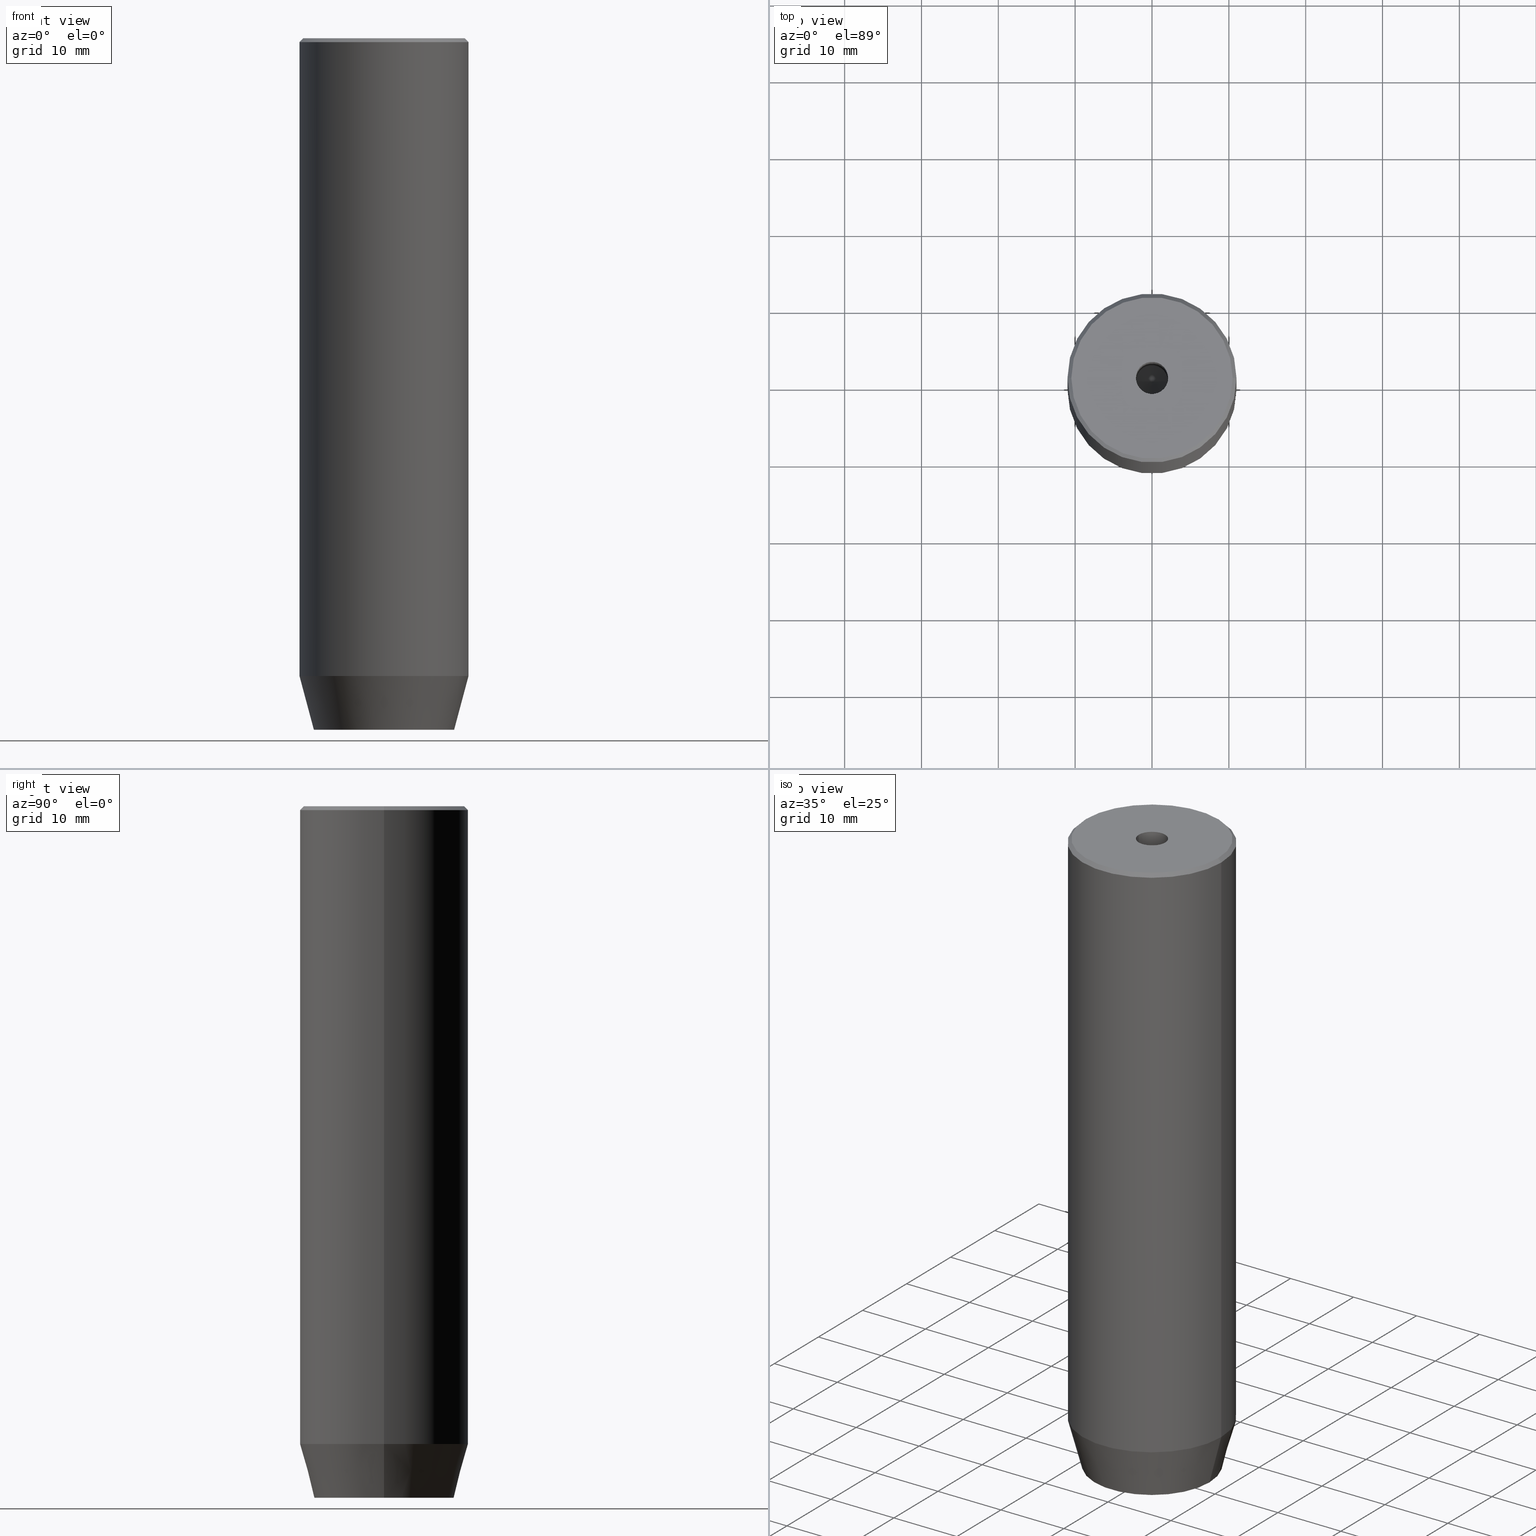
[diagram: canonical four-view strip — front | top / right | iso, engineering-drawing reading convention]
A machine part, canonical four-view strip (front | top / right | iso — engineering-drawing reading convention). The complete STEP part file that produces these views, byte-faithful:
ISO-10303-21;
HEADER;
FILE_DESCRIPTION (( 'STEP AP203' ),
    '1' );
FILE_NAME ('916c.STEP',
    '2024-01-02T19:02:00',
    ( '' ),
    ( '' ),
    'SwSTEP 2.0',
    'SolidWorks 2019',
    '' );
FILE_SCHEMA (( 'CONFIG_CONTROL_DESIGN' ));
ENDSEC;

DATA;
#1 = ADVANCED_FACE ( 'NONE', ( #243 ), #334, .F. ) ;
#2 = DIRECTION ( 'NONE',  ( -0.000000000000000000, -0.000000000000000000, 1.000000000000000000 ) ) ;
#3 = PERSON_AND_ORGANIZATION ( #75, #422 ) ;
#4 = EDGE_LOOP ( 'NONE', ( #456, #184, #555, #200 ) ) ;
#5 = DIRECTION ( 'NONE',  ( 1.000000000000000000, 0.000000000000000000, 0.000000000000000000 ) ) ;
#6 = EDGE_CURVE ( 'NONE', #329, #25, #424, .T. ) ;
#7 = ORIENTED_EDGE ( 'NONE', *, *, #59, .T. ) ;
#8 = DIRECTION ( 'NONE',  ( 0.8660254037844385966, -0.5000000000000001110, 0.000000000000000000 ) ) ;
#9 = AXIS2_PLACEMENT_3D ( 'NONE', #579, #410, #219 ) ;
#10 = CARTESIAN_POINT ( 'NONE',  ( -4.000000000000000000, 2.309401076758503368, -87.20000000000000284 ) ) ;
#11 = ORIENTED_EDGE ( 'NONE', *, *, #171, .T. ) ;
#12 = EDGE_CURVE ( 'NONE', #586, #420, #474, .T. ) ;
#13 = ORIENTED_EDGE ( 'NONE', *, *, #33, .T. ) ;
#14 = PLANE ( 'NONE',  #254 ) ;
#15 = APPROVAL_STATUS ( 'not_yet_approved' ) ;
#16 = ORIENTED_EDGE ( 'NONE', *, *, #214, .F. ) ;
#17 = ORIENTED_EDGE ( 'NONE', *, *, #116, .T. ) ;
#18 = EDGE_CURVE ( 'NONE', #408, #190, #22, .T. ) ;
#19 = PLANE ( 'NONE',  #336 ) ;
#20 = ORIENTED_EDGE ( 'NONE', *, *, #425, .T. ) ;
#21 = DIRECTION ( 'NONE',  ( -0.000000000000000000, -0.000000000000000000, -1.000000000000000000 ) ) ;
#22 = LINE ( 'NONE', #377, #546 ) ;
#23 = CARTESIAN_POINT ( 'NONE',  ( 4.000000000000000000, -2.309401076758502480, -90.00000000000000000 ) ) ;
#24 = CIRCLE ( 'NONE', #475, 10.49999999999999467 ) ;
#25 = VERTEX_POINT ( 'NONE', #568 ) ;
#26 = COORDINATED_UNIVERSAL_TIME_OFFSET ( 1, 0, .AHEAD. ) ;
#27 = CARTESIAN_POINT ( 'NONE',  ( 0.000000000000000000, 0.000000000000000000, -25.00000000000000000 ) ) ;
#28 = EDGE_CURVE ( 'NONE', #134, #420, #561, .T. ) ;
#29 = EDGE_LOOP ( 'NONE', ( #557, #499, #341, #269 ) ) ;
#30 = CARTESIAN_POINT ( 'NONE',  ( 2.000000000000000888, -3.464101615137754386, -87.20000000000000284 ) ) ;
#31 = CONICAL_SURFACE ( 'NONE', #513, 2.099999999999995648, 1.029744258676651647 ) ;
#32 = DIRECTION ( 'NONE',  ( 0.000000000000000000, 0.000000000000000000, -1.000000000000000000 ) ) ;
#33 = EDGE_CURVE ( 'NONE', #244, #201, #260, .T. ) ;
#34 = CARTESIAN_POINT ( 'NONE',  ( 2.099999999999995648, 0.000000000000000000, -25.00000000000000000 ) ) ;
#35 = DIRECTION ( 'NONE',  ( 1.000000000000000000, 0.000000000000000000, 0.000000000000000000 ) ) ;
#36 = VECTOR ( 'NONE', #339, 1000.000000000000114 ) ;
#37 = CIRCLE ( 'NONE', #368, 10.49999999999999467 ) ;
#38 = CARTESIAN_POINT ( 'NONE',  ( 4.000000000000000000, -2.309401076758502480, -87.20000000000000284 ) ) ;
#39 = ADVANCED_FACE ( 'NONE', ( #48 ), #235, .T. ) ;
#40 = CARTESIAN_POINT ( 'NONE',  ( -11.00000000000000000, 1.347111479062088405E-15, 0.000000000000000000 ) ) ;
#41 = PERSON_AND_ORGANIZATION ( #75, #422 ) ;
#42 = LINE ( 'NONE', #314, #524 ) ;
#43 = ORIENTED_EDGE ( 'NONE', *, *, #571, .T. ) ;
#44 = DIRECTION ( 'NONE',  ( 1.000000000000000000, 0.000000000000000000, 0.000000000000000000 ) ) ;
#45 = CONICAL_SURFACE ( 'NONE', #453, 2.099999999999995648, 1.029744258676651647 ) ;
#46 = APPROVAL_PERSON_ORGANIZATION ( #570, #578, #62 ) ;
#47 = DIRECTION ( 'NONE',  ( -0.000000000000000000, -0.000000000000000000, -1.000000000000000000 ) ) ;
#48 = FACE_OUTER_BOUND ( 'NONE', #29, .T. ) ;
#49 = ORIENTED_EDGE ( 'NONE', *, *, #409, .F. ) ;
#50 = CARTESIAN_POINT ( 'NONE',  ( 0.000000000000000000, 4.618802153517006737, -87.20000000000000284 ) ) ;
#51 = CARTESIAN_POINT ( 'NONE',  ( -2.000000000000000000, 3.464101615137754830, -87.20000000000000284 ) ) ;
#52 = ORIENTED_EDGE ( 'NONE', *, *, #506, .F. ) ;
#53 = CARTESIAN_POINT ( 'NONE',  ( 0.000000000000000000, 0.000000000000000000, -25.00000000000000000 ) ) ;
#54 = EDGE_LOOP ( 'NONE', ( #340, #49, #527, #515 ) ) ;
#55 = VECTOR ( 'NONE', #438, 1000.000000000000000 ) ;
#56 = CC_DESIGN_APPROVAL ( #485, ( #584 ) ) ;
#57 = DATE_AND_TIME ( #232, #106 ) ;
#58 = ORIENTED_EDGE ( 'NONE', *, *, #346, .T. ) ;
#59 = EDGE_CURVE ( 'NONE', #286, #344, #460, .T. ) ;
#60 = VERTEX_POINT ( 'NONE', #174 ) ;
#61 = DIRECTION ( 'NONE',  ( 1.000000000000000000, 0.000000000000000000, 0.000000000000000000 ) ) ;
#62 = APPROVAL_ROLE ( '' ) ;
#63 = VERTEX_POINT ( 'NONE', #10 ) ;
#64 = CARTESIAN_POINT ( 'NONE',  ( 9.124355652982133691, 0.000000000000000000, -90.00000000000000000 ) ) ;
#65 = EDGE_CURVE ( 'NONE', #277, #97, #42, .T. ) ;
#66 = ORIENTED_EDGE ( 'NONE', *, *, #233, .T. ) ;
#67 = VECTOR ( 'NONE', #442, 1000.000000000000000 ) ;
#68 =( GEOMETRIC_REPRESENTATION_CONTEXT ( 3 ) GLOBAL_UNCERTAINTY_ASSIGNED_CONTEXT ( ( #204 ) ) GLOBAL_UNIT_ASSIGNED_CONTEXT ( ( #262, #168, #216 ) ) REPRESENTATION_CONTEXT ( 'NONE', 'WORKASPACE' ) );
#69 = DIRECTION ( 'NONE',  ( -0.8660254037844384856, 0.5000000000000002220, 0.000000000000000000 ) ) ;
#70 = EDGE_CURVE ( 'NONE', #278, #564, #347, .T. ) ;
#71 = FACE_OUTER_BOUND ( 'NONE', #109, .T. ) ;
#72 = EDGE_LOOP ( 'NONE', ( #433, #359 ) ) ;
#73 = ORIENTED_EDGE ( 'NONE', *, *, #434, .T. ) ;
#74 = DIRECTION ( 'NONE',  ( 0.5000000000000001110, 0.8660254037844385966, -0.000000000000000000 ) ) ;
#75 = PERSON ( 'NEUR�EN�', 'NEUR�EN�', 'NEUR�EN�', ('NEUR�EN�'), ('NEUR�EN�'), ('NEUR�EN�') ) ;
#76 = LINE ( 'NONE', #122, #167 ) ;
#77 = AXIS2_PLACEMENT_3D ( 'NONE', #457, #363, #146 ) ;
#78 = VECTOR ( 'NONE', #295, 1000.000000000000114 ) ;
#79 = ADVANCED_FACE ( 'NONE', ( #497 ), #507, .F. ) ;
#80 = CARTESIAN_POINT ( 'NONE',  ( -11.00000000000000000, 1.347111479062088405E-15, -0.5000000000000004441 ) ) ;
#81 = FACE_OUTER_BOUND ( 'NONE', #299, .T. ) ;
#82 = DIRECTION ( 'NONE',  ( -1.000000000000000000, 0.000000000000000000, -0.000000000000000000 ) ) ;
#83 = VECTOR ( 'NONE', #401, 1000.000000000000000 ) ;
#84 = CC_DESIGN_SECURITY_CLASSIFICATION ( #236, ( #406 ) ) ;
#85 = CARTESIAN_POINT ( 'NONE',  ( -11.00000000000000000, 1.347111479062088405E-15, -82.99999999999998579 ) ) ;
#86 = ADVANCED_FACE ( 'NONE', ( #187 ), #31, .F. ) ;
#87 = CARTESIAN_POINT ( 'NONE',  ( -10.49999999999999467, 0.000000000000000000, 0.000000000000000000 ) ) ;
#88 = PRODUCT_DEFINITION_SHAPE ( 'NONE', 'NONE',  #584 ) ;
#89 = CARTESIAN_POINT ( 'NONE',  ( 0.000000000000000000, 0.000000000000000000, 0.000000000000000000 ) ) ;
#90 = ORIENTED_EDGE ( 'NONE', *, *, #163, .T. ) ;
#91 = CARTESIAN_POINT ( 'NONE',  ( 4.000000000000000000, 2.309401076758503368, -87.20000000000000284 ) ) ;
#92 = DIRECTION ( 'NONE',  ( 1.000000000000000000, 0.000000000000000000, 0.000000000000000000 ) ) ;
#93 = CALENDAR_DATE ( 2024, 2, 1 ) ;
#94 = AXIS2_PLACEMENT_3D ( 'NONE', #418, #270, #537 ) ;
#95 = LINE ( 'NONE', #85, #208 ) ;
#96 = CARTESIAN_POINT ( 'NONE',  ( 0.000000000000000000, 0.000000000000000000, -90.00000000000000000 ) ) ;
#97 = VERTEX_POINT ( 'NONE', #144 ) ;
#98 = CARTESIAN_POINT ( 'NONE',  ( -6.432287649943602629E-15, 0.000000000000000000, -26.26180729995787999 ) ) ;
#99 = CARTESIAN_POINT ( 'NONE',  ( 0.000000000000000000, 0.000000000000000000, -82.99999999999998579 ) ) ;
#100 = EDGE_CURVE ( 'NONE', #382, #329, #226, .T. ) ;
#101 = LINE ( 'NONE', #423, #177 ) ;
#102 = COORDINATED_UNIVERSAL_TIME_OFFSET ( 1, 0, .AHEAD. ) ;
#103 = ORIENTED_EDGE ( 'NONE', *, *, #100, .F. ) ;
#104 = ORIENTED_EDGE ( 'NONE', *, *, #59, .F. ) ;
#105 = DIRECTION ( 'NONE',  ( -1.000000000000000000, 0.000000000000000000, 0.000000000000000000 ) ) ;
#106 = LOCAL_TIME ( 20, 2, 0.000000000000000000, #133 ) ;
#107 = DIRECTION ( 'NONE',  ( 0.000000000000000000, 0.000000000000000000, -1.000000000000000000 ) ) ;
#108 = ORIENTED_EDGE ( 'NONE', *, *, #233, .F. ) ;
#109 = EDGE_LOOP ( 'NONE', ( #429, #322, #385 ) ) ;
#110 = CARTESIAN_POINT ( 'NONE',  ( 0.000000000000000000, 0.000000000000000000, -82.99999999999998579 ) ) ;
#111 = APPROVAL ( #419, 'NEUR�EN�' ) ;
#112 = ORIENTED_EDGE ( 'NONE', *, *, #18, .F. ) ;
#113 = FACE_OUTER_BOUND ( 'NONE', #374, .T. ) ;
#114 = CARTESIAN_POINT ( 'NONE',  ( -11.00000000000000000, 1.347111479062088405E-15, -82.99999999999998579 ) ) ;
#115 = DIRECTION ( 'NONE',  ( 1.000000000000000000, 0.000000000000000000, -0.000000000000000000 ) ) ;
#116 = EDGE_CURVE ( 'NONE', #25, #408, #231, .T. ) ;
#117 = DIRECTION ( 'NONE',  ( 0.000000000000000000, -0.000000000000000000, 1.000000000000000000 ) ) ;
#118 = VERTEX_POINT ( 'NONE', #179 ) ;
#119 = AXIS2_PLACEMENT_3D ( 'NONE', #481, #309, #444 ) ;
#120 = EDGE_LOOP ( 'NONE', ( #416, #381, #543, #452 ) ) ;
#121 = LINE ( 'NONE', #38, #55 ) ;
#122 = CARTESIAN_POINT ( 'NONE',  ( 4.000000000000000000, 0.000000000000000000, -87.20000000000000284 ) ) ;
#123 = DIRECTION ( 'NONE',  ( -0.000000000000000000, -0.000000000000000000, 1.000000000000000000 ) ) ;
#124 = EDGE_CURVE ( 'NONE', #190, #277, #220, .T. ) ;
#125 = FACE_OUTER_BOUND ( 'NONE', #509, .T. ) ;
#126 = DIRECTION ( 'NONE',  ( 0.000000000000000000, 0.000000000000000000, -1.000000000000000000 ) ) ;
#127 = APPLICATION_PROTOCOL_DEFINITION ( 'international standard', 'config_control_design', 1994, #392 ) ;
#128 = CLOSED_SHELL ( 'NONE', ( #79, #222, #470, #39, #390, #137, #514, #132, #574, #510, #242, #439, #198, #365, #1, #395, #324, #86, #291 ) ) ;
#129 = AXIS2_PLACEMENT_3D ( 'NONE', #96, #566, #61 ) ;
#130 = LOCAL_TIME ( 20, 2, 0.000000000000000000, #451 ) ;
#131 = DIRECTION ( 'NONE',  ( -0.2588190451025213501, 3.169619151431772337E-17, 0.9659258262890680902 ) ) ;
#132 = ADVANCED_FACE ( 'NONE', ( #325 ), #358, .T. ) ;
#133 = COORDINATED_UNIVERSAL_TIME_OFFSET ( 1, 0, .AHEAD. ) ;
#134 = VERTEX_POINT ( 'NONE', #98 ) ;
#135 = CC_DESIGN_PERSON_AND_ORGANIZATION_ASSIGNMENT ( #320, #147, ( #236 ) ) ;
#136 = FACE_BOUND ( 'NONE', #273, .T. ) ;
#137 = ADVANCED_FACE ( 'NONE', ( #136, #223 ), #276, .T. ) ;
#138 = DIRECTION ( 'NONE',  ( 0.7071067811865500152, 8.659560562354962440E-17, -0.7071067811865451302 ) ) ;
#139 = DATE_AND_TIME ( #93, #130 ) ;
#140 = ORIENTED_EDGE ( 'NONE', *, *, #171, .F. ) ;
#141 = VECTOR ( 'NONE', #69, 1000.000000000000114 ) ;
#142 = AXIS2_PLACEMENT_3D ( 'NONE', #164, #32, #82 ) ;
#143 = DIRECTION ( 'NONE',  ( -1.000000000000000000, 0.000000000000000000, 0.000000000000000000 ) ) ;
#144 = CARTESIAN_POINT ( 'NONE',  ( 4.000000000000000000, 2.309401076758503368, -90.00000000000000000 ) ) ;
#145 = ORIENTED_EDGE ( 'NONE', *, *, #346, .F. ) ;
#146 = DIRECTION ( 'NONE',  ( 1.000000000000000000, 0.000000000000000000, 0.000000000000000000 ) ) ;
#147 = PERSON_AND_ORGANIZATION_ROLE ( 'classification_officer' ) ;
#148 = VERTEX_POINT ( 'NONE', #327 ) ;
#149 = ORIENTED_EDGE ( 'NONE', *, *, #6, .F. ) ;
#150 = DIRECTION ( 'NONE',  ( -0.000000000000000000, -0.000000000000000000, 1.000000000000000000 ) ) ;
#151 = ORIENTED_EDGE ( 'NONE', *, *, #266, .T. ) ;
#152 = LINE ( 'NONE', #471, #209 ) ;
#153 = ORIENTED_EDGE ( 'NONE', *, *, #100, .T. ) ;
#154 = APPROVAL_PERSON_ORGANIZATION ( #538, #111, #227 ) ;
#155 = DIRECTION ( 'NONE',  ( -0.5000000000000000000, 0.8660254037844387076, 0.000000000000000000 ) ) ;
#156 = CARTESIAN_POINT ( 'NONE',  ( 2.099999999999995648, 0.000000000000000000, -25.00000000000000000 ) ) ;
#157 = EDGE_LOOP ( 'NONE', ( #145, #545, #337, #553 ) ) ;
#158 = DIRECTION ( 'NONE',  ( 0.000000000000000000, 1.000000000000000000, 0.000000000000000000 ) ) ;
#159 = EDGE_CURVE ( 'NONE', #60, #318, #196, .T. ) ;
#160 = DIRECTION ( 'NONE',  ( -0.8660254037844385966, -0.4999999999999999445, 0.000000000000000000 ) ) ;
#161 = CONICAL_SURFACE ( 'NONE', #224, 10.49999999999999467, 0.7853981633974517207 ) ;
#162 = SHAPE_DEFINITION_REPRESENTATION ( #88, #289 ) ;
#163 = EDGE_CURVE ( 'NONE', #244, #344, #449, .T. ) ;
#164 = CARTESIAN_POINT ( 'NONE',  ( 0.000000000000000000, 0.000000000000000000, -87.20000000000000284 ) ) ;
#165 = DIRECTION ( 'NONE',  ( -0.000000000000000000, -0.000000000000000000, 1.000000000000000000 ) ) ;
#166 = DIRECTION ( 'NONE',  ( 1.000000000000000000, 0.000000000000000000, 0.000000000000000000 ) ) ;
#167 = VECTOR ( 'NONE', #529, 1000.000000000000000 ) ;
#168 =( NAMED_UNIT ( * ) PLANE_ANGLE_UNIT ( ) SI_UNIT ( $, .RADIAN. ) );
#169 = AXIS2_PLACEMENT_3D ( 'NONE', #110, #292, #520 ) ;
#170 = DIRECTION ( 'NONE',  ( 0.8660254037844384856, 0.5000000000000002220, 0.000000000000000000 ) ) ;
#171 = EDGE_CURVE ( 'NONE', #148, #118, #455, .T. ) ;
#172 = CARTESIAN_POINT ( 'NONE',  ( 0.000000000000000000, 0.000000000000000000, 0.000000000000000000 ) ) ;
#173 = FACE_OUTER_BOUND ( 'NONE', #413, .T. ) ;
#174 = CARTESIAN_POINT ( 'NONE',  ( -2.099999999999998757, 2.571758278209440478E-16, -1.990051048614449116E-16 ) ) ;
#175 = CIRCLE ( 'NONE', #335, 11.00000000000000000 ) ;
#176 = EDGE_LOOP ( 'NONE', ( #195, #361, #149, #73 ) ) ;
#177 = VECTOR ( 'NONE', #338, 1000.000000000000114 ) ;
#178 = EDGE_CURVE ( 'NONE', #63, #466, #319, .T. ) ;
#179 = CARTESIAN_POINT ( 'NONE',  ( 11.00000000000000000, 0.000000000000000000, -0.5000000000000004441 ) ) ;
#180 = ORIENTED_EDGE ( 'NONE', *, *, #498, .T. ) ;
#181 = LINE ( 'NONE', #535, #83 ) ;
#182 = CARTESIAN_POINT ( 'NONE',  ( -4.000000000000000000, -2.309401076758503368, -87.20000000000000284 ) ) ;
#183 = CC_DESIGN_PERSON_AND_ORGANIZATION_ASSIGNMENT ( #412, #271, ( #406 ) ) ;
#184 = ORIENTED_EDGE ( 'NONE', *, *, #70, .T. ) ;
#185 = AXIS2_PLACEMENT_3D ( 'NONE', #308, #491, #35 ) ;
#186 = FACE_OUTER_BOUND ( 'NONE', #4, .T. ) ;
#187 = FACE_OUTER_BOUND ( 'NONE', #468, .T. ) ;
#188 = ORIENTED_EDGE ( 'NONE', *, *, #414, .F. ) ;
#189 = EDGE_CURVE ( 'NONE', #564, #278, #531, .T. ) ;
#190 = VERTEX_POINT ( 'NONE', #342 ) ;
#191 = FACE_OUTER_BOUND ( 'NONE', #176, .T. ) ;
#192 = DIRECTION ( 'NONE',  ( -0.000000000000000000, -0.000000000000000000, 1.000000000000000000 ) ) ;
#193 = ORIENTED_EDGE ( 'NONE', *, *, #528, .T. ) ;
#194 = CARTESIAN_POINT ( 'NONE',  ( 0.000000000000000000, 0.000000000000000000, 0.000000000000000000 ) ) ;
#195 = ORIENTED_EDGE ( 'NONE', *, *, #214, .T. ) ;
#196 = CIRCLE ( 'NONE', #559, 2.099999999999998757 ) ;
#197 = DIRECTION ( 'NONE',  ( 0.2588190451025213501, 0.000000000000000000, 0.9659258262890680902 ) ) ;
#198 = ADVANCED_FACE ( 'NONE', ( #191 ), #14, .F. ) ;
#199 = DESIGN_CONTEXT ( 'detailed design', #225, 'design' ) ;
#200 = ORIENTED_EDGE ( 'NONE', *, *, #33, .F. ) ;
#201 = VERTEX_POINT ( 'NONE', #376 ) ;
#202 = CARTESIAN_POINT ( 'NONE',  ( 2.168404344971008868E-16, 4.618802153517006737, -90.00000000000000000 ) ) ;
#203 = EDGE_LOOP ( 'NONE', ( #326, #13, #518, #247 ) ) ;
#204 = UNCERTAINTY_MEASURE_WITH_UNIT (LENGTH_MEASURE( 1.000000000000000082E-05 ), #262, 'distance_accuracy_value', 'NONE');
#205 = EDGE_CURVE ( 'NONE', #63, #190, #430, .T. ) ;
#206 = ORIENTED_EDGE ( 'NONE', *, *, #498, .F. ) ;
#207 = CARTESIAN_POINT ( 'NONE',  ( -4.000000000000000000, -2.309401076758503368, -90.00000000000000000 ) ) ;
#208 = VECTOR ( 'NONE', #131, 1000.000000000000000 ) ;
#209 = VECTOR ( 'NONE', #197, 1000.000000000000000 ) ;
#210 = PLANE ( 'NONE',  #321 ) ;
#211 = CARTESIAN_POINT ( 'NONE',  ( 0.000000000000000000, 0.000000000000000000, -1.990051048614449116E-16 ) ) ;
#212 = CARTESIAN_POINT ( 'NONE',  ( 4.336808689942017736E-16, -4.618802153517006737, -87.20000000000000284 ) ) ;
#213 = AXIS2_PLACEMENT_3D ( 'NONE', #27, #192, #389 ) ;
#214 = EDGE_CURVE ( 'NONE', #330, #408, #101, .T. ) ;
#215 = VECTOR ( 'NONE', #367, 1000.000000000000000 ) ;
#216 =( NAMED_UNIT ( * ) SI_UNIT ( $, .STERADIAN. ) SOLID_ANGLE_UNIT ( ) );
#217 = CC_DESIGN_APPROVAL ( #578, ( #236 ) ) ;
#218 = LINE ( 'NONE', #489, #583 ) ;
#219 = DIRECTION ( 'NONE',  ( 0.000000000000000000, 0.000000000000000000, 1.000000000000000000 ) ) ;
#220 = LINE ( 'NONE', #550, #487 ) ;
#221 = PERSON_AND_ORGANIZATION_ROLE ( 'design_owner' ) ;
#222 = ADVANCED_FACE ( 'NONE', ( #71 ), #45, .F. ) ;
#223 = FACE_OUTER_BOUND ( 'NONE', #458, .T. ) ;
#224 = AXIS2_PLACEMENT_3D ( 'NONE', #540, #126, #143 ) ;
#225 = APPLICATION_CONTEXT ( 'configuration controlled 3d designs of mechanical parts and assemblies' ) ;
#226 = LINE ( 'NONE', #267, #351 ) ;
#227 = APPROVAL_ROLE ( '' ) ;
#228 = EDGE_LOOP ( 'NONE', ( #387, #294 ) ) ;
#229 = DIRECTION ( 'NONE',  ( -0.8660254037844384856, -0.5000000000000002220, 0.000000000000000000 ) ) ;
#230 = ORIENTED_EDGE ( 'NONE', *, *, #375, .F. ) ;
#231 = LINE ( 'NONE', #182, #215 ) ;
#232 = CALENDAR_DATE ( 2024, 2, 1 ) ;
#233 = EDGE_CURVE ( 'NONE', #344, #118, #272, .T. ) ;
#234 = EDGE_LOOP ( 'NONE', ( #193, #90, #66, #239 ) ) ;
#235 = CONICAL_SURFACE ( 'NONE', #462, 11.00000000000000000, 0.2617993877991500740 ) ;
#236 = SECURITY_CLASSIFICATION ( '', '', #511 ) ;
#237 = APPROVAL_DATE_TIME ( #364, #485 ) ;
#238 = ORIENTED_EDGE ( 'NONE', *, *, #65, .F. ) ;
#239 = ORIENTED_EDGE ( 'NONE', *, *, #447, .F. ) ;
#240 = CARTESIAN_POINT ( 'NONE',  ( -2.000000000000000888, -3.464101615137754386, -87.20000000000000284 ) ) ;
#241 = ORIENTED_EDGE ( 'NONE', *, *, #178, .T. ) ;
#242 = ADVANCED_FACE ( 'NONE', ( #436 ), #516, .F. ) ;
#243 = FACE_OUTER_BOUND ( 'NONE', #521, .T. ) ;
#244 = VERTEX_POINT ( 'NONE', #114 ) ;
#245 = AXIS2_PLACEMENT_3D ( 'NONE', #30, #399, #170 ) ;
#246 = LINE ( 'NONE', #563, #323 ) ;
#247 = ORIENTED_EDGE ( 'NONE', *, *, #506, .T. ) ;
#248 = CARTESIAN_POINT ( 'NONE',  ( -4.000000000000000000, 0.000000000000000000, -87.20000000000000284 ) ) ;
#249 = DATE_AND_TIME ( #328, #306 ) ;
#250 = LINE ( 'NONE', #370, #78 ) ;
#251 = DIRECTION ( 'NONE',  ( -0.000000000000000000, 0.000000000000000000, -1.000000000000000000 ) ) ;
#252 = ORIENTED_EDGE ( 'NONE', *, *, #434, .F. ) ;
#253 = PLANE ( 'NONE',  #142 ) ;
#254 = AXIS2_PLACEMENT_3D ( 'NONE', #240, #428, #391 ) ;
#255 = CARTESIAN_POINT ( 'NONE',  ( 2.000000000000000444, 3.464101615137754386, -87.20000000000000284 ) ) ;
#256 = LINE ( 'NONE', #400, #297 ) ;
#257 = CARTESIAN_POINT ( 'NONE',  ( 0.000000000000000000, 0.000000000000000000, 0.000000000000000000 ) ) ;
#258 = MECHANICAL_CONTEXT ( 'NONE', #392, 'mechanical' ) ;
#259 = LINE ( 'NONE', #349, #503 ) ;
#260 = CIRCLE ( 'NONE', #345, 11.00000000000000000 ) ;
#261 = VECTOR ( 'NONE', #47, 1000.000000000000000 ) ;
#262 =( LENGTH_UNIT ( ) NAMED_UNIT ( * ) SI_UNIT ( .MILLI., .METRE. ) );
#263 = CARTESIAN_POINT ( 'NONE',  ( 4.000000000000000000, 0.000000000000000000, -90.00000000000000000 ) ) ;
#264 = PRODUCT_RELATED_PRODUCT_CATEGORY ( 'detail', '', ( #486 ) ) ;
#265 = DIRECTION ( 'NONE',  ( -0.000000000000000000, -0.000000000000000000, 1.000000000000000000 ) ) ;
#266 = EDGE_CURVE ( 'NONE', #25, #63, #473, .T. ) ;
#267 = CARTESIAN_POINT ( 'NONE',  ( 2.000000000000000888, -3.464101615137754386, -87.20000000000000284 ) ) ;
#268 = CC_DESIGN_DATE_AND_TIME_ASSIGNMENT ( #57, #281, ( #584 ) ) ;
#269 = ORIENTED_EDGE ( 'NONE', *, *, #525, .F. ) ;
#270 = DIRECTION ( 'NONE',  ( 0.000000000000000000, 0.000000000000000000, -1.000000000000000000 ) ) ;
#271 = PERSON_AND_ORGANIZATION_ROLE ( 'creator' ) ;
#272 = CIRCLE ( 'NONE', #494, 11.00000000000000000 ) ;
#273 = EDGE_LOOP ( 'NONE', ( #431, #112, #16, #549, #206, #238 ) ) ;
#274 = LOCAL_TIME ( 20, 2, 0.000000000000000000, #461 ) ;
#275 = DIRECTION ( 'NONE',  ( -0.8571673007021108903, 1.049727191138616847E-16, 0.5150380749100565980 ) ) ;
#276 = PLANE ( 'NONE',  #94 ) ;
#277 = VERTEX_POINT ( 'NONE', #202 ) ;
#278 = VERTEX_POINT ( 'NONE', #388 ) ;
#279 = EDGE_CURVE ( 'NONE', #148, #286, #24, .T. ) ;
#280 = DIRECTION ( 'NONE',  ( 1.000000000000000000, 0.000000000000000000, 0.000000000000000000 ) ) ;
#281 = DATE_TIME_ROLE ( 'creation_date' ) ;
#282 = CALENDAR_DATE ( 2024, 2, 1 ) ;
#283 = DIRECTION ( 'NONE',  ( -0.000000000000000000, -0.000000000000000000, 1.000000000000000000 ) ) ;
#284 = MANIFOLD_SOLID_BREP ( 'Vrt�k z�vitn�ku pro M5 z�vit1', #128 ) ;
#285 = AXIS2_PLACEMENT_3D ( 'NONE', #558, #155, #160 ) ;
#286 = VERTEX_POINT ( 'NONE', #526 ) ;
#287 = FACE_BOUND ( 'NONE', #228, .T. ) ;
#288 = DIRECTION ( 'NONE',  ( 1.000000000000000000, 0.000000000000000000, 0.000000000000000000 ) ) ;
#289 = ADVANCED_BREP_SHAPE_REPRESENTATION ( '916c', ( #284, #465 ), #68 ) ;
#290 = DIRECTION ( 'NONE',  ( 0.000000000000000000, 1.000000000000000000, 0.000000000000000000 ) ) ;
#291 = ADVANCED_FACE ( 'NONE', ( #577 ), #576, .F. ) ;
#292 = DIRECTION ( 'NONE',  ( -0.000000000000000000, -0.000000000000000000, 1.000000000000000000 ) ) ;
#293 = CARTESIAN_POINT ( 'NONE',  ( 0.000000000000000000, 0.000000000000000000, -82.99999999999998579 ) ) ;
#294 = ORIENTED_EDGE ( 'NONE', *, *, #159, .F. ) ;
#295 = DIRECTION ( 'NONE',  ( -0.8660254037844384856, -0.5000000000000002220, 0.000000000000000000 ) ) ;
#296 = CARTESIAN_POINT ( 'NONE',  ( -2.000000000000000888, -3.464101615137754386, -87.20000000000000284 ) ) ;
#297 = VECTOR ( 'NONE', #304, 1000.000000000000000 ) ;
#298 = DIRECTION ( 'NONE',  ( -0.000000000000000000, -0.000000000000000000, 1.000000000000000000 ) ) ;
#299 = EDGE_LOOP ( 'NONE', ( #552, #252, #103, #565 ) ) ;
#300 = ORIENTED_EDGE ( 'NONE', *, *, #28, .T. ) ;
#301 = EDGE_CURVE ( 'NONE', #472, #382, #76, .T. ) ;
#302 = CARTESIAN_POINT ( 'NONE',  ( 4.000000000000000000, -2.309401076758502480, -87.20000000000000284 ) ) ;
#303 = ORIENTED_EDGE ( 'NONE', *, *, #18, .T. ) ;
#304 = DIRECTION ( 'NONE',  ( -0.000000000000000000, -0.000000000000000000, -1.000000000000000000 ) ) ;
#305 = CARTESIAN_POINT ( 'NONE',  ( 4.336808689942017736E-16, -4.618802153517006737, -90.00000000000000000 ) ) ;
#306 = LOCAL_TIME ( 20, 2, 0.000000000000000000, #102 ) ;
#307 = EDGE_CURVE ( 'NONE', #382, #562, #121, .T. ) ;
#308 = CARTESIAN_POINT ( 'NONE',  ( 0.000000000000000000, 0.000000000000000000, -25.00000000000000000 ) ) ;
#309 = DIRECTION ( 'NONE',  ( -0.000000000000000000, -0.000000000000000000, 1.000000000000000000 ) ) ;
#310 = EDGE_CURVE ( 'NONE', #466, #277, #256, .T. ) ;
#311 = CARTESIAN_POINT ( 'NONE',  ( -2.099999999999995648, 2.571758278209436040E-16, -25.00000000000000000 ) ) ;
#312 = AXIS2_PLACEMENT_3D ( 'NONE', #257, #396, #166 ) ;
#313 = CC_DESIGN_PERSON_AND_ORGANIZATION_ASSIGNMENT ( #41, #221, ( #486 ) ) ;
#314 = CARTESIAN_POINT ( 'NONE',  ( 2.000000000000000444, 3.464101615137754386, -90.00000000000000000 ) ) ;
#315 = EDGE_LOOP ( 'NONE', ( #505, #58, #480, #230 ) ) ;
#316 = DIRECTION ( 'NONE',  ( 1.000000000000000000, 0.000000000000000000, 0.000000000000000000 ) ) ;
#317 = PERSON_AND_ORGANIZATION_ROLE ( 'creator' ) ;
#318 = VERTEX_POINT ( 'NONE', #354 ) ;
#319 = LINE ( 'NONE', #51, #398 ) ;
#320 = PERSON_AND_ORGANIZATION ( #75, #422 ) ;
#321 = AXIS2_PLACEMENT_3D ( 'NONE', #255, #74, #484 ) ;
#322 = ORIENTED_EDGE ( 'NONE', *, *, #482, .T. ) ;
#323 = VECTOR ( 'NONE', #8, 1000.000000000000000 ) ;
#324 = ADVANCED_FACE ( 'NONE', ( #125 ), #253, .T. ) ;
#325 = FACE_OUTER_BOUND ( 'NONE', #203, .T. ) ;
#326 = ORIENTED_EDGE ( 'NONE', *, *, #163, .F. ) ;
#327 = CARTESIAN_POINT ( 'NONE',  ( 10.49999999999999467, 1.316495309083404420E-15, 0.000000000000000000 ) ) ;
#328 = CALENDAR_DATE ( 2024, 2, 1 ) ;
#329 = VERTEX_POINT ( 'NONE', #212 ) ;
#330 = VERTEX_POINT ( 'NONE', #305 ) ;
#331 = DIRECTION ( 'NONE',  ( 0.000000000000000000, 0.000000000000000000, -1.000000000000000000 ) ) ;
#332 = DIRECTION ( 'NONE',  ( 1.000000000000000000, 0.000000000000000000, 0.000000000000000000 ) ) ;
#333 = CALENDAR_DATE ( 2024, 2, 1 ) ;
#334 = PLANE ( 'NONE',  #582 ) ;
#335 = AXIS2_PLACEMENT_3D ( 'NONE', #362, #331, #556 ) ;
#336 = AXIS2_PLACEMENT_3D ( 'NONE', #194, #117, #477 ) ;
#337 = ORIENTED_EDGE ( 'NONE', *, *, #375, .T. ) ;
#338 = DIRECTION ( 'NONE',  ( -0.8660254037844384856, 0.5000000000000002220, 0.000000000000000000 ) ) ;
#339 = DIRECTION ( 'NONE',  ( 0.8571673007021108903, 0.000000000000000000, 0.5150380749100565980 ) ) ;
#340 = ORIENTED_EDGE ( 'NONE', *, *, #65, .T. ) ;
#341 = ORIENTED_EDGE ( 'NONE', *, *, #528, .F. ) ;
#342 = CARTESIAN_POINT ( 'NONE',  ( -4.000000000000000000, 2.309401076758503368, -90.00000000000000000 ) ) ;
#343 = FACE_OUTER_BOUND ( 'NONE', #72, .T. ) ;
#344 = VERTEX_POINT ( 'NONE', #80 ) ;
#345 = AXIS2_PLACEMENT_3D ( 'NONE', #293, #469, #415 ) ;
#346 = EDGE_CURVE ( 'NONE', #586, #60, #259, .T. ) ;
#347 = CIRCLE ( 'NONE', #432, 9.124355652982133691 ) ;
#348 = ORIENTED_EDGE ( 'NONE', *, *, #70, .F. ) ;
#349 = CARTESIAN_POINT ( 'NONE',  ( -2.099999999999996980, 2.571758278209438013E-16, 0.000000000000000000 ) ) ;
#350 = PLANE ( 'NONE',  #245 ) ;
#351 = VECTOR ( 'NONE', #229, 1000.000000000000114 ) ;
#352 = DIRECTION ( 'NONE',  ( 1.000000000000000000, 0.000000000000000000, 0.000000000000000000 ) ) ;
#353 = AXIS2_PLACEMENT_3D ( 'NONE', #380, #426, #105 ) ;
#354 = CARTESIAN_POINT ( 'NONE',  ( 2.099999999999998757, 0.000000000000000000, -1.990051048614449116E-16 ) ) ;
#355 = FACE_OUTER_BOUND ( 'NONE', #483, .T. ) ;
#356 = DIRECTION ( 'NONE',  ( 0.000000000000000000, 0.000000000000000000, 1.000000000000000000 ) ) ;
#357 = CIRCLE ( 'NONE', #445, 2.099999999999998757 ) ;
#358 = CYLINDRICAL_SURFACE ( 'NONE', #77, 11.00000000000000000 ) ;
#359 = ORIENTED_EDGE ( 'NONE', *, *, #279, .T. ) ;
#360 = DIRECTION ( 'NONE',  ( -0.7071067811865500152, 0.000000000000000000, -0.7071067811865451302 ) ) ;
#361 = ORIENTED_EDGE ( 'NONE', *, *, #116, .F. ) ;
#362 = CARTESIAN_POINT ( 'NONE',  ( 0.000000000000000000, 0.000000000000000000, -0.5000000000000004441 ) ) ;
#363 = DIRECTION ( 'NONE',  ( -0.000000000000000000, -0.000000000000000000, 1.000000000000000000 ) ) ;
#364 = DATE_AND_TIME ( #282, #274 ) ;
#365 = ADVANCED_FACE ( 'NONE', ( #81 ), #350, .F. ) ;
#366 = ORIENTED_EDGE ( 'NONE', *, *, #205, .F. ) ;
#367 = DIRECTION ( 'NONE',  ( -0.000000000000000000, -0.000000000000000000, -1.000000000000000000 ) ) ;
#368 = AXIS2_PLACEMENT_3D ( 'NONE', #573, #530, #443 ) ;
#369 = ORIENTED_EDGE ( 'NONE', *, *, #301, .T. ) ;
#370 = CARTESIAN_POINT ( 'NONE',  ( 2.000000000000000888, -3.464101615137754386, -90.00000000000000000 ) ) ;
#371 = DIRECTION ( 'NONE',  ( -0.000000000000000000, -0.000000000000000000, 1.000000000000000000 ) ) ;
#372 = APPROVAL_DATE_TIME ( #139, #111 ) ;
#373 = ORIENTED_EDGE ( 'NONE', *, *, #307, .F. ) ;
#374 = EDGE_LOOP ( 'NONE', ( #140, #188, #7, #52 ) ) ;
#375 = EDGE_CURVE ( 'NONE', #420, #318, #218, .T. ) ;
#376 = CARTESIAN_POINT ( 'NONE',  ( 11.00000000000000000, 0.000000000000000000, -82.99999999999998579 ) ) ;
#377 = CARTESIAN_POINT ( 'NONE',  ( -4.000000000000000000, 0.000000000000000000, -90.00000000000000000 ) ) ;
#378 = ORIENTED_EDGE ( 'NONE', *, *, #301, .F. ) ;
#379 = CC_DESIGN_PERSON_AND_ORGANIZATION_ASSIGNMENT ( #542, #317, ( #584 ) ) ;
#380 = CARTESIAN_POINT ( 'NONE',  ( 0.000000000000000000, 0.000000000000000000, 0.000000000000000000 ) ) ;
#381 = ORIENTED_EDGE ( 'NONE', *, *, #310, .F. ) ;
#382 = VERTEX_POINT ( 'NONE', #302 ) ;
#383 = AXIS2_PLACEMENT_3D ( 'NONE', #89, #580, #541 ) ;
#384 = AXIS2_PLACEMENT_3D ( 'NONE', #99, #283, #44 ) ;
#385 = ORIENTED_EDGE ( 'NONE', *, *, #12, .T. ) ;
#386 = APPROVAL_STATUS ( 'not_yet_approved' ) ;
#387 = ORIENTED_EDGE ( 'NONE', *, *, #421, .F. ) ;
#388 = CARTESIAN_POINT ( 'NONE',  ( -9.124355652982133691, 1.232261386766375507E-15, -90.00000000000000000 ) ) ;
#389 = DIRECTION ( 'NONE',  ( 1.000000000000000000, 0.000000000000000000, 0.000000000000000000 ) ) ;
#390 = ADVANCED_FACE ( 'NONE', ( #446 ), #534, .T. ) ;
#391 = DIRECTION ( 'NONE',  ( 0.8660254037844384856, -0.5000000000000002220, 0.000000000000000000 ) ) ;
#392 = APPLICATION_CONTEXT ( 'configuration controlled 3d designs of mechanical parts and assemblies' ) ;
#393 = CIRCLE ( 'NONE', #185, 2.099999999999995648 ) ;
#394 = LINE ( 'NONE', #572, #67 ) ;
#395 = ADVANCED_FACE ( 'NONE', ( #533 ), #210, .F. ) ;
#396 = DIRECTION ( 'NONE',  ( -0.000000000000000000, -0.000000000000000000, 1.000000000000000000 ) ) ;
#397 = DIRECTION ( 'NONE',  ( -0.000000000000000000, -0.000000000000000000, 1.000000000000000000 ) ) ;
#398 = VECTOR ( 'NONE', #504, 999.9999999999998863 ) ;
#399 = DIRECTION ( 'NONE',  ( 0.5000000000000003331, -0.8660254037844385966, 0.000000000000000000 ) ) ;
#400 = CARTESIAN_POINT ( 'NONE',  ( 0.000000000000000000, 4.618802153517006737, -87.20000000000000284 ) ) ;
#401 = DIRECTION ( 'NONE',  ( -0.000000000000000000, -0.000000000000000000, 1.000000000000000000 ) ) ;
#402 = CARTESIAN_POINT ( 'NONE',  ( 0.000000000000000000, 0.000000000000000000, -90.00000000000000000 ) ) ;
#403 = APPLICATION_PROTOCOL_DEFINITION ( 'international standard', 'config_control_design', 1994, #225 ) ;
#404 = CARTESIAN_POINT ( 'NONE',  ( 4.336808689942017736E-16, -4.618802153517006737, -87.20000000000000284 ) ) ;
#405 = VECTOR ( 'NONE', #158, 1000.000000000000000 ) ;
#406 = PRODUCT_DEFINITION_FORMATION_WITH_SPECIFIED_SOURCE ( 'LIBOVOLN�', '', #486, .NOT_KNOWN. ) ;
#407 = CARTESIAN_POINT ( 'NONE',  ( 0.000000000000000000, 0.000000000000000000, -82.99999999999998579 ) ) ;
#408 = VERTEX_POINT ( 'NONE', #207 ) ;
#409 = EDGE_CURVE ( 'NONE', #472, #97, #394, .T. ) ;
#410 = DIRECTION ( 'NONE',  ( -1.000000000000000000, 0.000000000000000000, 0.000000000000000000 ) ) ;
#411 = DIRECTION ( 'NONE',  ( 0.8660254037844387076, 0.5000000000000001110, 0.000000000000000000 ) ) ;
#412 = PERSON_AND_ORGANIZATION ( #75, #422 ) ;
#413 = EDGE_LOOP ( 'NONE', ( #512, #11, #108, #104 ) ) ;
#414 = EDGE_CURVE ( 'NONE', #286, #148, #37, .T. ) ;
#415 = DIRECTION ( 'NONE',  ( 1.000000000000000000, 0.000000000000000000, 0.000000000000000000 ) ) ;
#416 = ORIENTED_EDGE ( 'NONE', *, *, #124, .T. ) ;
#417 = PLANE ( 'NONE',  #9 ) ;
#418 = CARTESIAN_POINT ( 'NONE',  ( 0.000000000000000000, 9.124355652982133691, -90.00000000000000000 ) ) ;
#419 = APPROVAL_STATUS ( 'not_yet_approved' ) ;
#420 = VERTEX_POINT ( 'NONE', #34 ) ;
#421 = EDGE_CURVE ( 'NONE', #318, #60, #357, .T. ) ;
#422 = ORGANIZATION ( 'NEUR�EN�', 'NEUR�EN�', '' ) ;
#423 = CARTESIAN_POINT ( 'NONE',  ( -2.000000000000000888, -3.464101615137754386, -90.00000000000000000 ) ) ;
#424 = LINE ( 'NONE', #296, #141 ) ;
#425 = EDGE_CURVE ( 'NONE', #420, #586, #393, .T. ) ;
#426 = DIRECTION ( 'NONE',  ( 0.000000000000000000, 0.000000000000000000, -1.000000000000000000 ) ) ;
#427 = ORIENTED_EDGE ( 'NONE', *, *, #482, .F. ) ;
#428 = DIRECTION ( 'NONE',  ( -0.5000000000000003331, -0.8660254037844385966, 0.000000000000000000 ) ) ;
#429 = ORIENTED_EDGE ( 'NONE', *, *, #28, .F. ) ;
#430 = LINE ( 'NONE', #569, #547 ) ;
#431 = ORIENTED_EDGE ( 'NONE', *, *, #124, .F. ) ;
#432 = AXIS2_PLACEMENT_3D ( 'NONE', #402, #585, #280 ) ;
#433 = ORIENTED_EDGE ( 'NONE', *, *, #414, .T. ) ;
#434 = EDGE_CURVE ( 'NONE', #329, #330, #459, .T. ) ;
#435 = CARTESIAN_POINT ( 'NONE',  ( 0.000000000000000000, 0.000000000000000000, -0.5000000000000004441 ) ) ;
#436 = FACE_OUTER_BOUND ( 'NONE', #120, .T. ) ;
#437 = ORIENTED_EDGE ( 'NONE', *, *, #266, .F. ) ;
#438 = DIRECTION ( 'NONE',  ( -0.000000000000000000, -0.000000000000000000, -1.000000000000000000 ) ) ;
#439 = ADVANCED_FACE ( 'NONE', ( #355 ), #417, .F. ) ;
#440 = VECTOR ( 'NONE', #500, 1000.000000000000000 ) ;
#441 = VECTOR ( 'NONE', #496, 1000.000000000000000 ) ;
#442 = DIRECTION ( 'NONE',  ( -0.000000000000000000, -0.000000000000000000, -1.000000000000000000 ) ) ;
#443 = DIRECTION ( 'NONE',  ( 1.000000000000000000, 0.000000000000000000, 0.000000000000000000 ) ) ;
#444 = DIRECTION ( 'NONE',  ( 1.000000000000000000, 0.000000000000000000, 0.000000000000000000 ) ) ;
#445 = AXIS2_PLACEMENT_3D ( 'NONE', #211, #397, #352 ) ;
#446 = FACE_OUTER_BOUND ( 'NONE', #234, .T. ) ;
#447 = EDGE_CURVE ( 'NONE', #201, #118, #181, .T. ) ;
#448 = LINE ( 'NONE', #311, #463 ) ;
#449 = LINE ( 'NONE', #40, #440 ) ;
#450 = CARTESIAN_POINT ( 'NONE',  ( 0.000000000000000000, 0.000000000000000000, -1.990051048614449116E-16 ) ) ;
#451 = COORDINATED_UNIVERSAL_TIME_OFFSET ( 1, 0, .AHEAD. ) ;
#452 = ORIENTED_EDGE ( 'NONE', *, *, #205, .T. ) ;
#453 = AXIS2_PLACEMENT_3D ( 'NONE', #554, #150, #332 ) ;
#454 = LOCAL_TIME ( 20, 2, 0.000000000000000000, #26 ) ;
#455 = LINE ( 'NONE', #544, #536 ) ;
#456 = ORIENTED_EDGE ( 'NONE', *, *, #492, .F. ) ;
#457 = CARTESIAN_POINT ( 'NONE',  ( 0.000000000000000000, 0.000000000000000000, 0.000000000000000000 ) ) ;
#458 = EDGE_LOOP ( 'NONE', ( #464, #348 ) ) ;
#459 = LINE ( 'NONE', #404, #261 ) ;
#460 = LINE ( 'NONE', #87, #493 ) ;
#461 = COORDINATED_UNIVERSAL_TIME_OFFSET ( 1, 0, .AHEAD. ) ;
#462 = AXIS2_PLACEMENT_3D ( 'NONE', #407, #2, #92 ) ;
#463 = VECTOR ( 'NONE', #275, 1000.000000000000114 ) ;
#464 = ORIENTED_EDGE ( 'NONE', *, *, #189, .F. ) ;
#465 = AXIS2_PLACEMENT_3D ( 'NONE', #172, #356, #495 ) ;
#466 = VERTEX_POINT ( 'NONE', #50 ) ;
#467 = APPROVAL_DATE_TIME ( #567, #578 ) ;
#468 = EDGE_LOOP ( 'NONE', ( #427, #300, #20 ) ) ;
#469 = DIRECTION ( 'NONE',  ( -0.000000000000000000, -0.000000000000000000, 1.000000000000000000 ) ) ;
#470 = ADVANCED_FACE ( 'NONE', ( #173 ), #161, .T. ) ;
#471 = CARTESIAN_POINT ( 'NONE',  ( 11.00000000000000000, 0.000000000000000000, -82.99999999999998579 ) ) ;
#472 = VERTEX_POINT ( 'NONE', #91 ) ;
#473 = LINE ( 'NONE', #248, #405 ) ;
#474 = CIRCLE ( 'NONE', #213, 2.099999999999995648 ) ;
#475 = AXIS2_PLACEMENT_3D ( 'NONE', #522, #298, #479 ) ;
#476 = CONICAL_SURFACE ( 'NONE', #384, 11.00000000000000000, 0.2617993877991500740 ) ;
#477 = DIRECTION ( 'NONE',  ( 1.000000000000000000, 0.000000000000000000, 0.000000000000000000 ) ) ;
#478 = ORIENTED_EDGE ( 'NONE', *, *, #6, .T. ) ;
#479 = DIRECTION ( 'NONE',  ( 1.000000000000000000, 0.000000000000000000, 0.000000000000000000 ) ) ;
#480 = ORIENTED_EDGE ( 'NONE', *, *, #159, .T. ) ;
#481 = CARTESIAN_POINT ( 'NONE',  ( 0.000000000000000000, 0.000000000000000000, 0.000000000000000000 ) ) ;
#482 = EDGE_CURVE ( 'NONE', #134, #586, #448, .T. ) ;
#483 = EDGE_LOOP ( 'NONE', ( #303, #366, #437, #17 ) ) ;
#484 = DIRECTION ( 'NONE',  ( -0.8660254037844385966, 0.5000000000000001110, 0.000000000000000000 ) ) ;
#485 = APPROVAL ( #15, 'NEUR�EN�' ) ;
#486 = PRODUCT ( '916c', '916c', '', ( #258 ) ) ;
#487 = VECTOR ( 'NONE', #411, 999.9999999999998863 ) ;
#488 = CIRCLE ( 'NONE', #169, 11.00000000000000000 ) ;
#489 = CARTESIAN_POINT ( 'NONE',  ( 2.099999999999996980, 0.000000000000000000, 0.000000000000000000 ) ) ;
#490 = CC_DESIGN_DATE_AND_TIME_ASSIGNMENT ( #249, #523, ( #236 ) ) ;
#491 = DIRECTION ( 'NONE',  ( -0.000000000000000000, -0.000000000000000000, 1.000000000000000000 ) ) ;
#492 = EDGE_CURVE ( 'NONE', #278, #244, #95, .T. ) ;
#493 = VECTOR ( 'NONE', #360, 1000.000000000000114 ) ;
#494 = AXIS2_PLACEMENT_3D ( 'NONE', #435, #107, #288 ) ;
#495 = DIRECTION ( 'NONE',  ( 1.000000000000000000, 0.000000000000000000, 0.000000000000000000 ) ) ;
#496 = DIRECTION ( 'NONE',  ( 0.000000000000000000, -1.000000000000000000, 0.000000000000000000 ) ) ;
#497 = FACE_OUTER_BOUND ( 'NONE', #315, .T. ) ;
#498 = EDGE_CURVE ( 'NONE', #97, #562, #502, .T. ) ;
#499 = ORIENTED_EDGE ( 'NONE', *, *, #492, .T. ) ;
#500 = DIRECTION ( 'NONE',  ( -0.000000000000000000, -0.000000000000000000, 1.000000000000000000 ) ) ;
#501 = CARTESIAN_POINT ( 'NONE',  ( -2.099999999999995648, 2.571758278209436040E-16, -25.00000000000000000 ) ) ;
#502 = LINE ( 'NONE', #263, #441 ) ;
#503 = VECTOR ( 'NONE', #165, 1000.000000000000000 ) ;
#504 = DIRECTION ( 'NONE',  ( 0.8660254037844387076, 0.5000000000000001110, 0.000000000000000000 ) ) ;
#505 = ORIENTED_EDGE ( 'NONE', *, *, #12, .F. ) ;
#506 = EDGE_CURVE ( 'NONE', #118, #344, #175, .T. ) ;
#507 = CYLINDRICAL_SURFACE ( 'NONE', #383, 2.099999999999996980 ) ;
#508 = APPROVAL_ROLE ( '' ) ;
#509 = EDGE_LOOP ( 'NONE', ( #241, #43, #369, #153, #478, #151 ) ) ;
#510 = ADVANCED_FACE ( 'NONE', ( #113 ), #575, .T. ) ;
#511 = SECURITY_CLASSIFICATION_LEVEL ( 'unclassified' ) ;
#512 = ORIENTED_EDGE ( 'NONE', *, *, #279, .F. ) ;
#513 = AXIS2_PLACEMENT_3D ( 'NONE', #53, #371, #5 ) ;
#514 = ADVANCED_FACE ( 'NONE', ( #287, #343 ), #19, .T. ) ;
#515 = ORIENTED_EDGE ( 'NONE', *, *, #310, .T. ) ;
#516 = PLANE ( 'NONE',  #285 ) ;
#517 = EDGE_CURVE ( 'NONE', #562, #330, #250, .T. ) ;
#518 = ORIENTED_EDGE ( 'NONE', *, *, #447, .T. ) ;
#519 = CARTESIAN_POINT ( 'NONE',  ( 4.000000000000000000, 0.000000000000000000, -87.20000000000000284 ) ) ;
#520 = DIRECTION ( 'NONE',  ( 1.000000000000000000, 0.000000000000000000, 0.000000000000000000 ) ) ;
#521 = EDGE_LOOP ( 'NONE', ( #180, #373, #378, #539 ) ) ;
#522 = CARTESIAN_POINT ( 'NONE',  ( 0.000000000000000000, 0.000000000000000000, 0.000000000000000000 ) ) ;
#523 = DATE_TIME_ROLE ( 'classification_date' ) ;
#524 = VECTOR ( 'NONE', #548, 1000.000000000000000 ) ;
#525 = EDGE_CURVE ( 'NONE', #564, #201, #152, .T. ) ;
#526 = CARTESIAN_POINT ( 'NONE',  ( -10.49999999999999467, 0.000000000000000000, 0.000000000000000000 ) ) ;
#527 = ORIENTED_EDGE ( 'NONE', *, *, #571, .F. ) ;
#528 = EDGE_CURVE ( 'NONE', #201, #244, #488, .T. ) ;
#529 = DIRECTION ( 'NONE',  ( 0.000000000000000000, -1.000000000000000000, 0.000000000000000000 ) ) ;
#530 = DIRECTION ( 'NONE',  ( -0.000000000000000000, -0.000000000000000000, 1.000000000000000000 ) ) ;
#531 = CIRCLE ( 'NONE', #129, 9.124355652982133691 ) ;
#532 = APPROVAL_PERSON_ORGANIZATION ( #581, #485, #508 ) ;
#533 = FACE_OUTER_BOUND ( 'NONE', #54, .T. ) ;
#534 = CYLINDRICAL_SURFACE ( 'NONE', #119, 11.00000000000000000 ) ;
#535 = CARTESIAN_POINT ( 'NONE',  ( 11.00000000000000000, 0.000000000000000000, 0.000000000000000000 ) ) ;
#536 = VECTOR ( 'NONE', #138, 1000.000000000000114 ) ;
#537 = DIRECTION ( 'NONE',  ( -1.000000000000000000, 0.000000000000000000, -0.000000000000000000 ) ) ;
#538 = PERSON_AND_ORGANIZATION ( #75, #422 ) ;
#539 = ORIENTED_EDGE ( 'NONE', *, *, #409, .T. ) ;
#540 = CARTESIAN_POINT ( 'NONE',  ( 0.000000000000000000, 0.000000000000000000, 0.000000000000000000 ) ) ;
#541 = DIRECTION ( 'NONE',  ( 1.000000000000000000, 0.000000000000000000, 0.000000000000000000 ) ) ;
#542 = PERSON_AND_ORGANIZATION ( #75, #422 ) ;
#543 = ORIENTED_EDGE ( 'NONE', *, *, #178, .F. ) ;
#544 = CARTESIAN_POINT ( 'NONE',  ( 10.49999999999999467, 1.285879139104720239E-15, 0.000000000000000000 ) ) ;
#545 = ORIENTED_EDGE ( 'NONE', *, *, #425, .F. ) ;
#546 = VECTOR ( 'NONE', #290, 1000.000000000000000 ) ;
#547 = VECTOR ( 'NONE', #21, 1000.000000000000000 ) ;
#548 = DIRECTION ( 'NONE',  ( 0.8660254037844385966, -0.5000000000000001110, 0.000000000000000000 ) ) ;
#549 = ORIENTED_EDGE ( 'NONE', *, *, #517, .F. ) ;
#550 = CARTESIAN_POINT ( 'NONE',  ( -2.000000000000000000, 3.464101615137754830, -90.00000000000000000 ) ) ;
#551 = PERSON_AND_ORGANIZATION_ROLE ( 'design_supplier' ) ;
#552 = ORIENTED_EDGE ( 'NONE', *, *, #517, .T. ) ;
#553 = ORIENTED_EDGE ( 'NONE', *, *, #421, .T. ) ;
#554 = CARTESIAN_POINT ( 'NONE',  ( 0.000000000000000000, 0.000000000000000000, -25.00000000000000000 ) ) ;
#555 = ORIENTED_EDGE ( 'NONE', *, *, #525, .T. ) ;
#556 = DIRECTION ( 'NONE',  ( 1.000000000000000000, 0.000000000000000000, 0.000000000000000000 ) ) ;
#557 = ORIENTED_EDGE ( 'NONE', *, *, #189, .T. ) ;
#558 = CARTESIAN_POINT ( 'NONE',  ( -2.000000000000000000, 3.464101615137754830, -87.20000000000000284 ) ) ;
#559 = AXIS2_PLACEMENT_3D ( 'NONE', #450, #265, #316 ) ;
#560 = CC_DESIGN_APPROVAL ( #111, ( #406 ) ) ;
#561 = LINE ( 'NONE', #156, #36 ) ;
#562 = VERTEX_POINT ( 'NONE', #23 ) ;
#563 = CARTESIAN_POINT ( 'NONE',  ( 2.000000000000000444, 3.464101615137754386, -87.20000000000000284 ) ) ;
#564 = VERTEX_POINT ( 'NONE', #64 ) ;
#565 = ORIENTED_EDGE ( 'NONE', *, *, #307, .T. ) ;
#566 = DIRECTION ( 'NONE',  ( -0.000000000000000000, -0.000000000000000000, 1.000000000000000000 ) ) ;
#567 = DATE_AND_TIME ( #333, #454 ) ;
#568 = CARTESIAN_POINT ( 'NONE',  ( -4.000000000000000000, -2.309401076758503368, -87.20000000000000284 ) ) ;
#569 = CARTESIAN_POINT ( 'NONE',  ( -4.000000000000000000, 2.309401076758503368, -87.20000000000000284 ) ) ;
#570 = PERSON_AND_ORGANIZATION ( #75, #422 ) ;
#571 = EDGE_CURVE ( 'NONE', #466, #472, #246, .T. ) ;
#572 = CARTESIAN_POINT ( 'NONE',  ( 4.000000000000000000, 2.309401076758503368, -87.20000000000000284 ) ) ;
#573 = CARTESIAN_POINT ( 'NONE',  ( 0.000000000000000000, 0.000000000000000000, 0.000000000000000000 ) ) ;
#574 = ADVANCED_FACE ( 'NONE', ( #186 ), #476, .T. ) ;
#575 = CONICAL_SURFACE ( 'NONE', #353, 10.49999999999999467, 0.7853981633974517207 ) ;
#576 = CYLINDRICAL_SURFACE ( 'NONE', #312, 2.099999999999996980 ) ;
#577 = FACE_OUTER_BOUND ( 'NONE', #157, .T. ) ;
#578 = APPROVAL ( #386, 'NEUR�EN�' ) ;
#579 = CARTESIAN_POINT ( 'NONE',  ( -4.000000000000000000, 0.000000000000000000, -87.20000000000000284 ) ) ;
#580 = DIRECTION ( 'NONE',  ( -0.000000000000000000, -0.000000000000000000, 1.000000000000000000 ) ) ;
#581 = PERSON_AND_ORGANIZATION ( #75, #422 ) ;
#582 = AXIS2_PLACEMENT_3D ( 'NONE', #519, #115, #251 ) ;
#583 = VECTOR ( 'NONE', #123, 1000.000000000000000 ) ;
#584 = PRODUCT_DEFINITION ( 'NEZN�M�', '', #406, #199 ) ;
#585 = DIRECTION ( 'NONE',  ( -0.000000000000000000, -0.000000000000000000, 1.000000000000000000 ) ) ;
#586 = VERTEX_POINT ( 'NONE', #501 ) ;
#587 = CC_DESIGN_PERSON_AND_ORGANIZATION_ASSIGNMENT ( #3, #551, ( #406 ) ) ;
ENDSEC;
END-ISO-10303-21;
